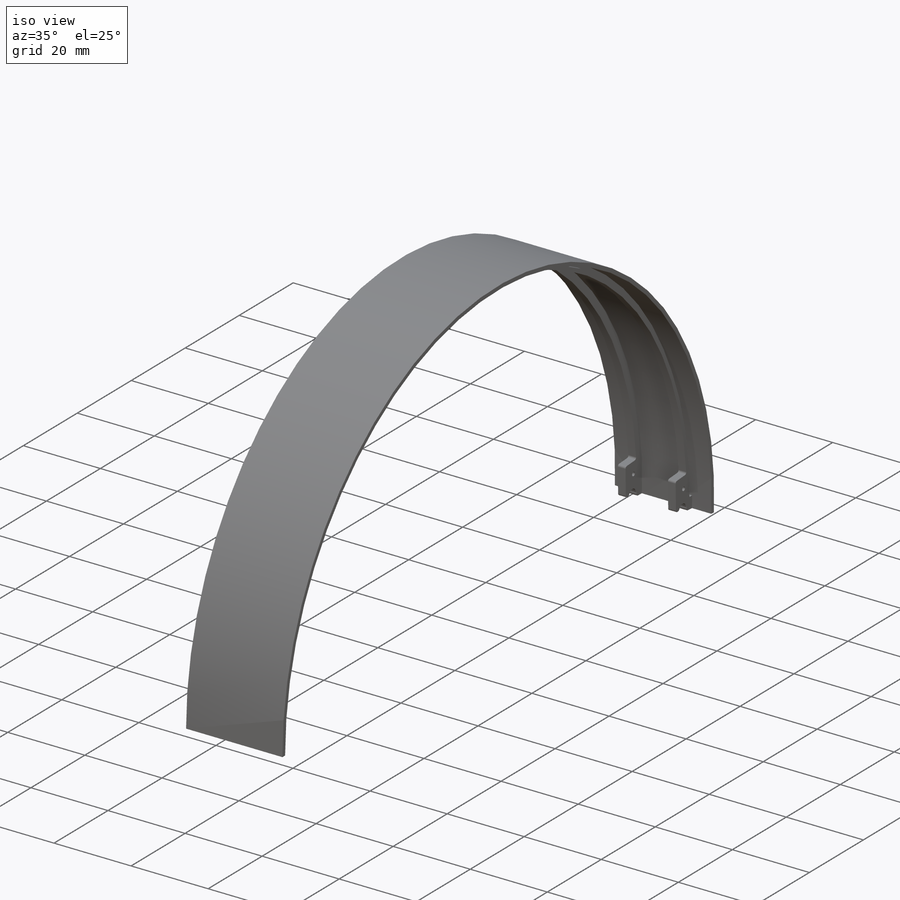
[diagram: iso view]
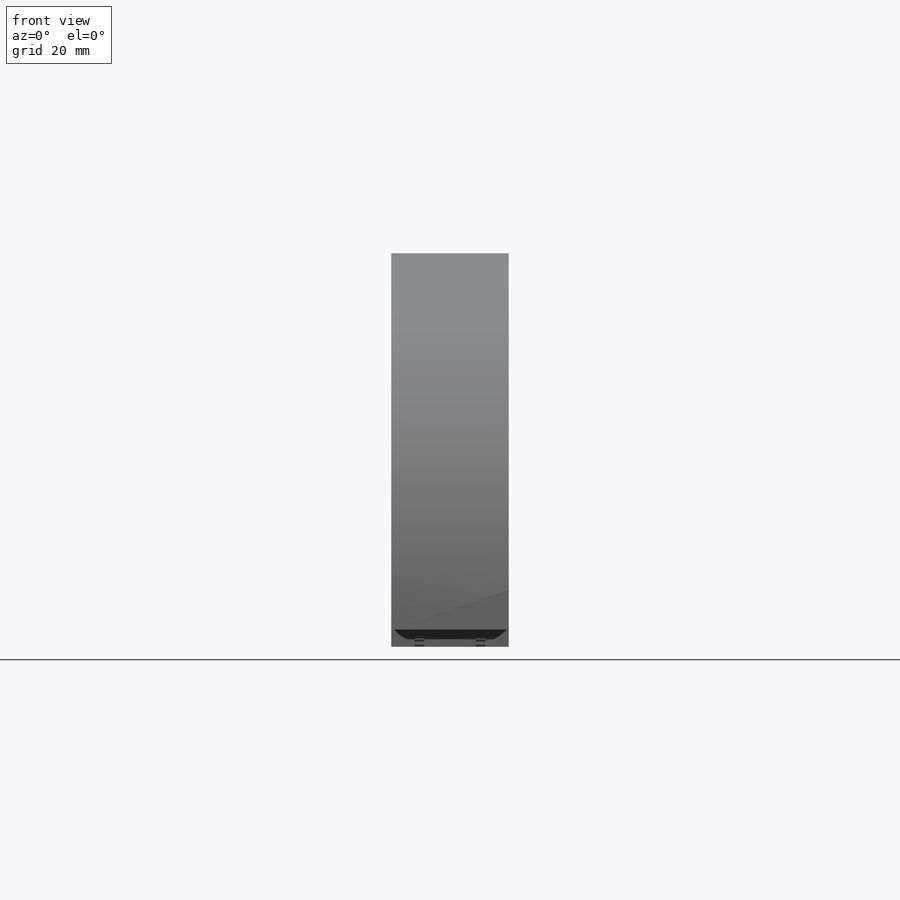
[diagram: front view]
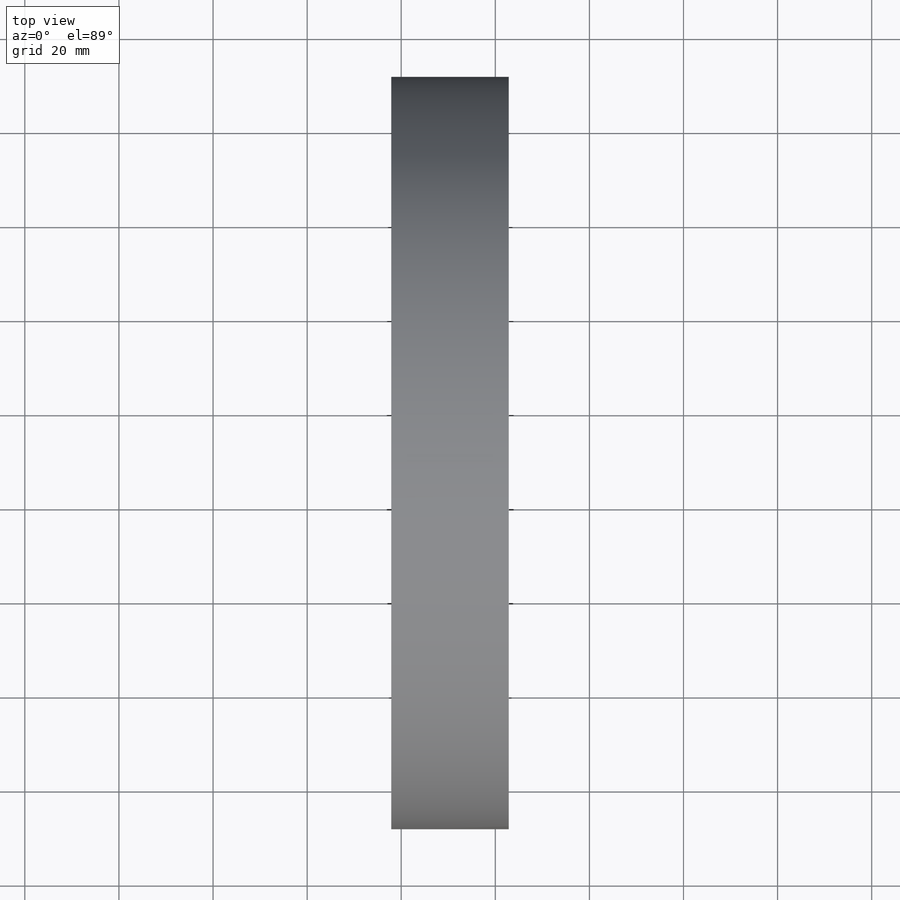
[diagram: top view]
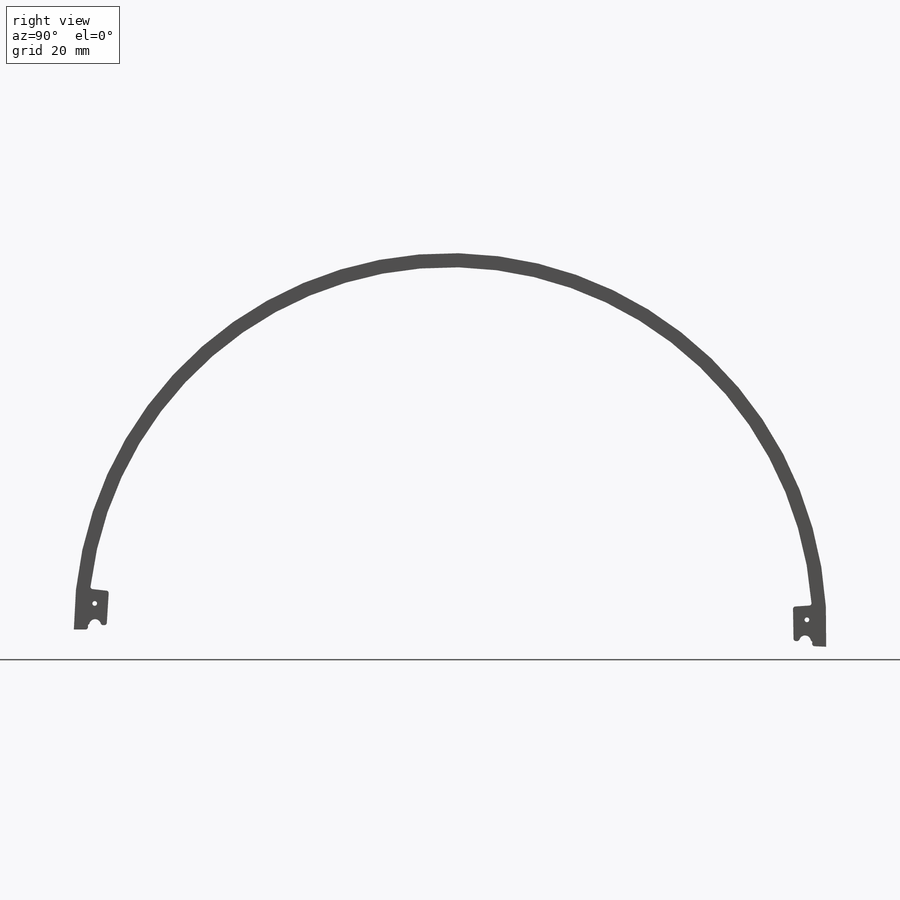
[diagram: right view]
SOLIDWORKS PART (.sldprt)
format: sldprt  version: not decoded by parser v0  size: 425,472 bytes
history: native  units: mm
features: sketch x6, plane x3, revolve x3, cut_extrude x3, fillet x2, material x1 (+9 scaffold rows collapsed)
feature tree (27):
  scaffold x9  (default folders/planes/origin — collapsed)
  material  "Material <sin especificar>"
  plane  "Alzado"
  plane  "Planta"
  plane  "Vista lateral"
  sketch  "Croquis2"  dims[D1=25.0mm D2=7.0mm D3=5.0mm D4=2.0mm D5=5.0mm D6=2.0mm D7=80.0mm D8=1.0mm]
  revolve  "Revolución1"  Angle=182.630297deg
  sketch  "Croquis3"  dims[c1.D1=154.0mm c1.D7=2.5mm c1.D8=2.5mm c1.D10=1.0mm c1.D13=1.0mm c1.D2=~16.148319mm c2.D2=~169.738747deg c2.D3=~102.857067mm c3.D3=~6.44575deg c3.D4=80.0mm c4.D4=~0.716723deg c4.D5=80.0mm c5.D5=~0.716172deg c5.D6=4.5mm c5.D9=80.0mm c5.D11=80.0mm c5.D12=4.18mm]
  cut_extrude  "Cortar-Extruir2"  Depth=64mm
  fillet  "Redondeo1"  Radius=0.5mm
  fillet  "Redondeo2"  Radius=0.5mm
  sketch  "Croquis5"  dims[D1=156.0mm]
  cut_extrude  "Cortar-Extruir4"  Depth=1mm
  sketch  "Croquis6"  dims[D1=156.0mm]
  cut_extrude  "Cortar-Extruir5"  Depth=1mm
  sketch  "Croquis7"  dims[D1=80.0mm]
  revolve  "Revolución2"  Angle=2.148592deg
  sketch  "Croquis8"  dims[D1=80.0mm]
  revolve  "Revolución4"  Angle=2.15deg
decode coverage: 14 of 14 modeling features carry decoded parameters
note: ~ marks probable driven/reference dimensions
note: suppression state not decoded; provenance and decode notes live in map.json
